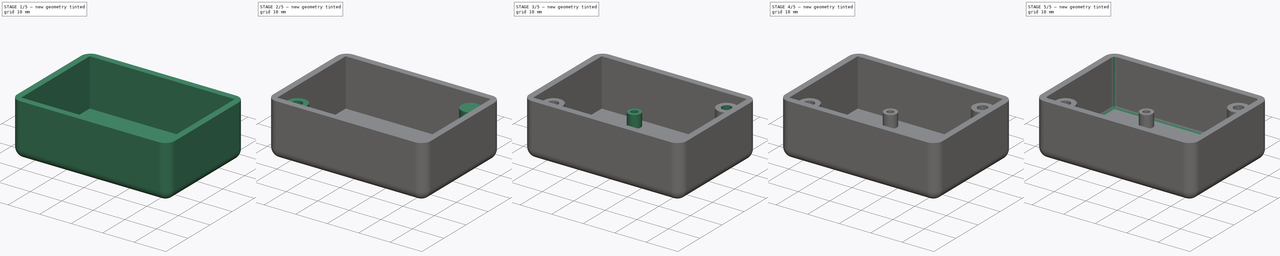
[diagram: build sequence overview — one tinted view per stage of 5, left to right]
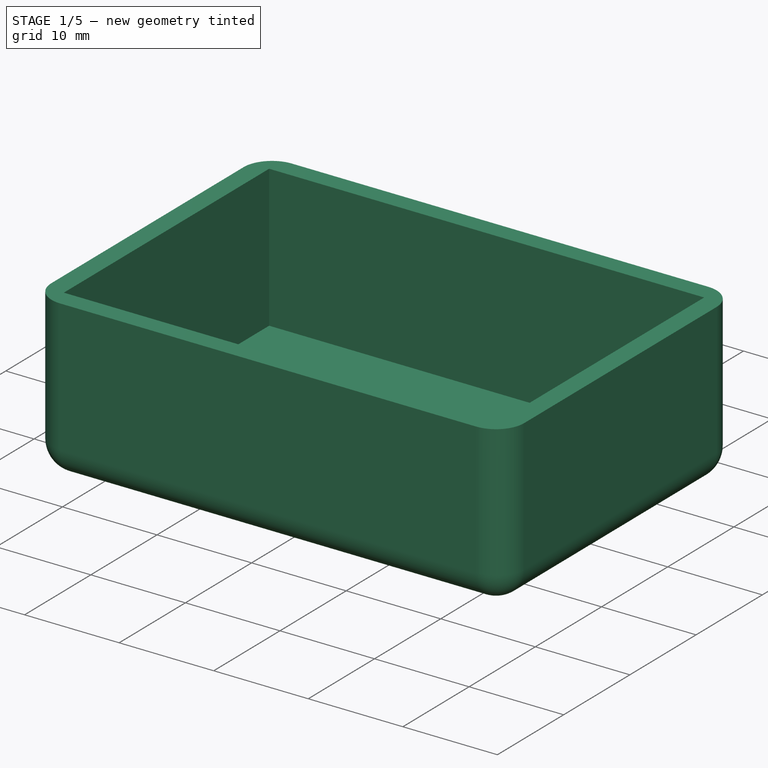
[diagram: stage 1 of 5 — iso view after this stage's code; geometry added in this stage tinted green]
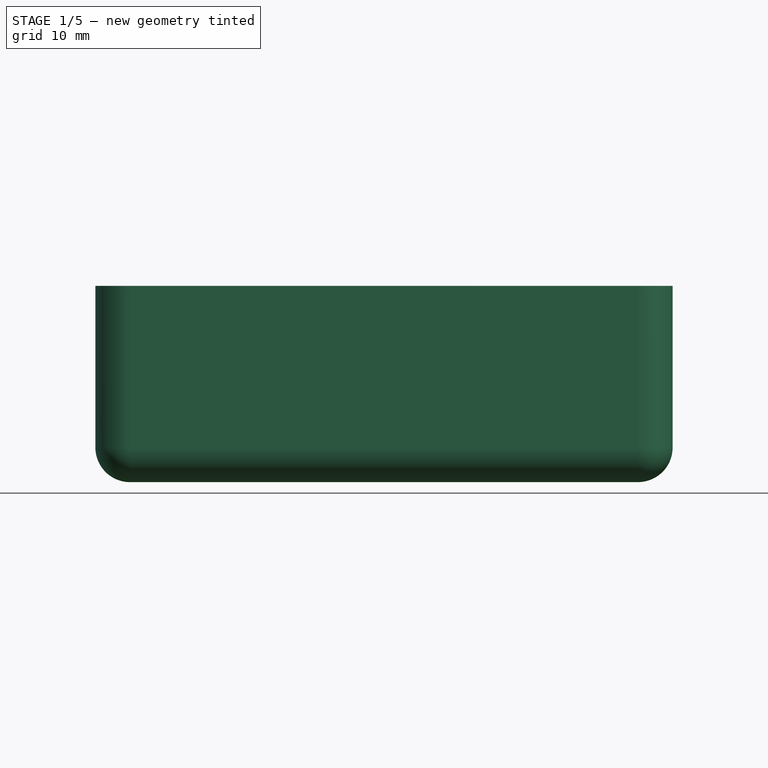
[diagram: stage 1 of 5 — front view after this stage's code; geometry added in this stage tinted green]
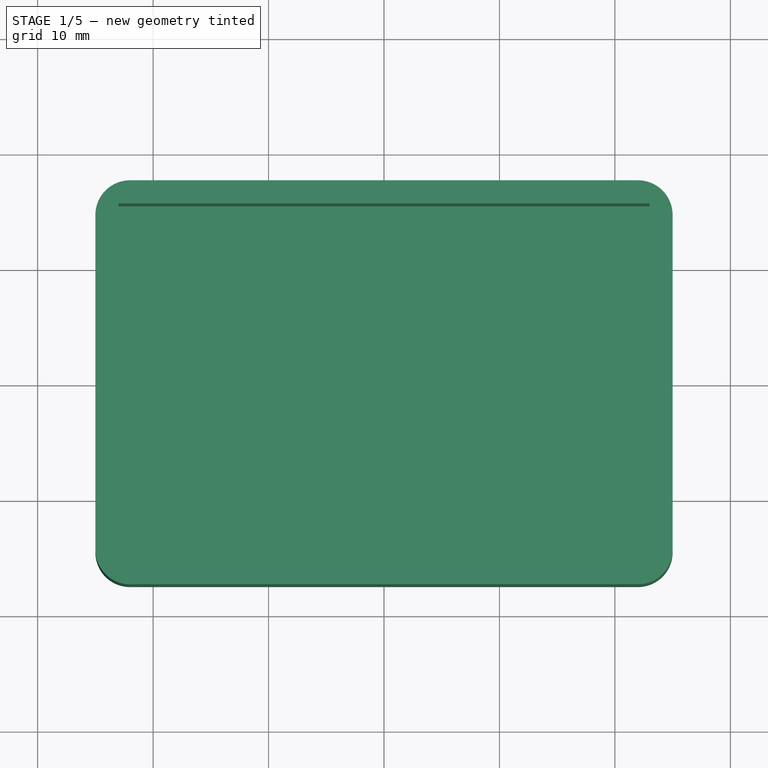
[diagram: stage 1 of 5 — top view after this stage's code; geometry added in this stage tinted green]
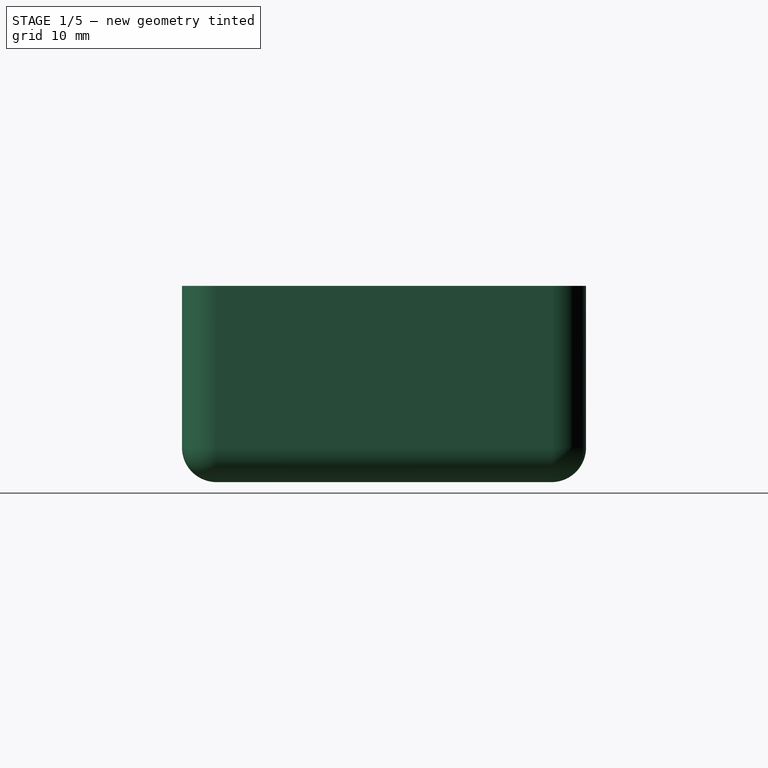
[diagram: stage 1 of 5 — right view after this stage's code; geometry added in this stage tinted green]
FCSTD DOCUMENT  (FreeCAD 0.18R16146 (Git))
Label: hammond_1551G_box
License: All rights reserved
LicenseURL: http://en.wikipedia.org/wiki/All_rights_reserved
objects: Sketcher::SketchObject×14, PartDesign::Pad×9, PartDesign::Pocket×5, PartDesign::Fillet×2, PartDesign::Body×1
note: 45 computed .brp shape members not serialized (recipe doc carries the construction recipe); baked Part::Feature solids carry a one-line shape summary decoded from their .brp

FEATURE [Sketcher::SketchObject] Sketch  label="box body base"
  MapMode = 5
  Support = -> [XY_Plane]
  sketch-geometry (4):
    g0: LineSegment StartX=-25 StartY=-17.5 StartZ=0 EndX=25 EndY=-17.5 EndZ=0
    g1: LineSegment StartX=25 StartY=-17.5 StartZ=0 EndX=25 EndY=17.5 EndZ=0
    g2: LineSegment StartX=25 StartY=17.5 StartZ=0 EndX=-25 EndY=17.5 EndZ=0
    g3: LineSegment StartX=-25 StartY=17.5 StartZ=0 EndX=-25 EndY=-17.5 EndZ=0
  constraints (8):
    c: Coincident(g0,g1)
    c: Coincident(g1,g2)
    c: Coincident(g2,g3)
    c: Coincident(g3,g0)
    c: Horizontal(g0)
    c: Horizontal(g2)
    c: Vertical(g1)
    c: Vertical(g3)
FEATURE [PartDesign::Pad] Pad  label="Box Body"
  Length = 17
  Length2 = 100
  Profile = -> Sketch
  Reversed = true
  Type = 0
FEATURE [Sketcher::SketchObject] Sketch002  label="box contents base"
  MapMode = 5
  Support = -> [XY_Plane]
  sketch-geometry (4):
    g0: LineSegment StartX=-23 StartY=-15.5 StartZ=0 EndX=23 EndY=-15.5 EndZ=0
    g1: LineSegment StartX=23 StartY=-15.5 StartZ=0 EndX=23 EndY=15.5 EndZ=0
    g2: LineSegment StartX=23 StartY=15.5 StartZ=0 EndX=-23 EndY=15.5 EndZ=0
    g3: LineSegment StartX=-23 StartY=15.5 StartZ=0 EndX=-23 EndY=-15.5 EndZ=0
  constraints (8):
    c: Coincident(g0,g1)
    c: Coincident(g1,g2)
    c: Coincident(g2,g3)
    c: Coincident(g3,g0)
    c: Horizontal(g0)
    c: Horizontal(g2)
    c: Vertical(g1)
    c: Vertical(g3)
FEATURE [PartDesign::Pocket] Pocket  label="Box contents"
  BaseFeature = -> Pad
  Length = 15
  Length2 = 100
  Profile = -> Sketch002
  Type = 0
FEATURE [PartDesign::Fillet] Fillet  label="outer fillet"
  Base = -> Pocket [Edge4,Edge2,Edge1,Edge7,Edge5,Edge16,Edge8,Edge10]
  BaseFeature = -> Pocket
  Radius = 3
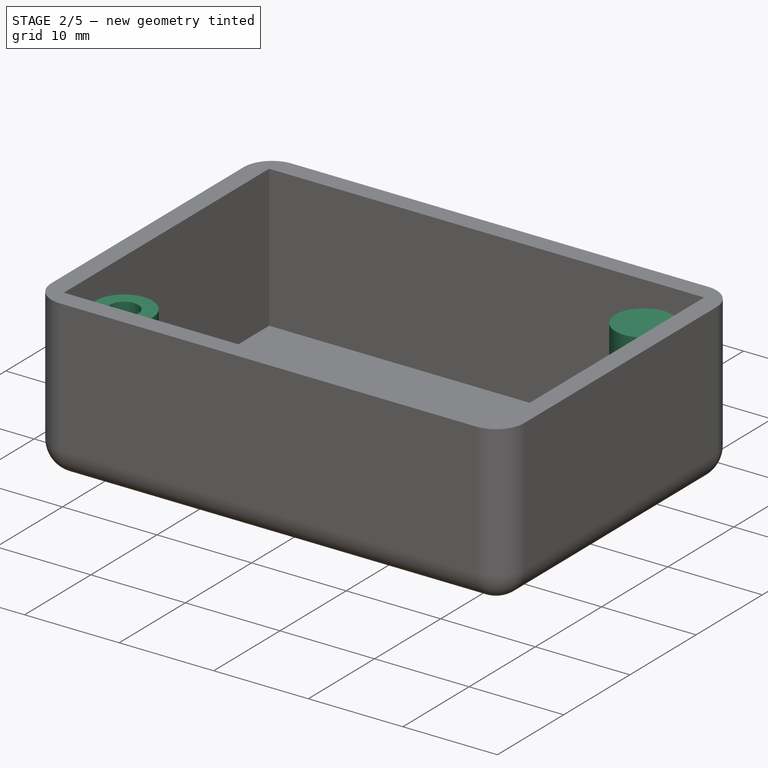
[diagram: stage 2 of 5 — iso view after this stage's code; geometry added in this stage tinted green]
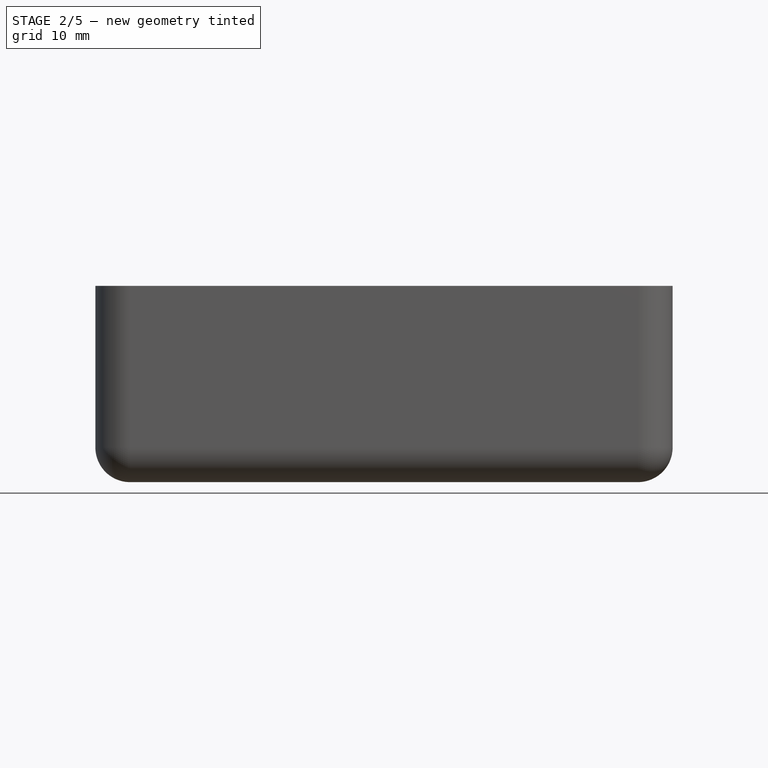
[diagram: stage 2 of 5 — front view after this stage's code; geometry added in this stage tinted green]
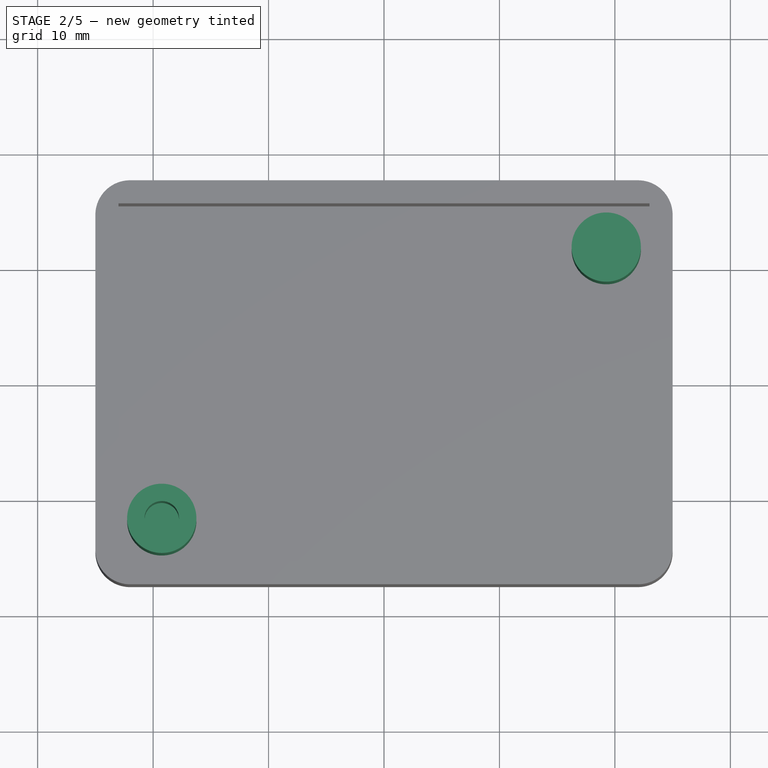
[diagram: stage 2 of 5 — top view after this stage's code; geometry added in this stage tinted green]
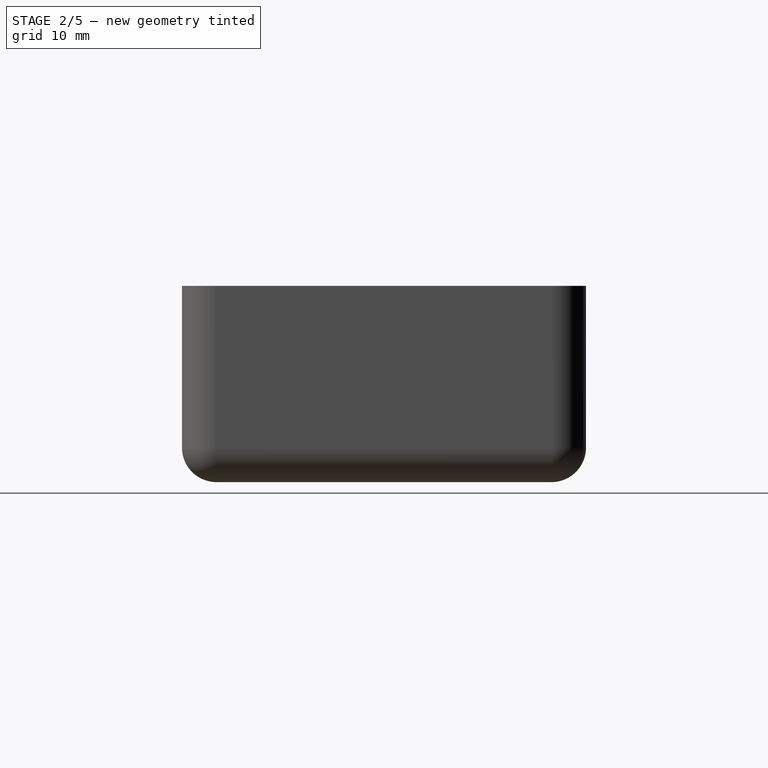
[diagram: stage 2 of 5 — right view after this stage's code; geometry added in this stage tinted green]
FEATURE [Sketcher::SketchObject] Sketch003  label="Left bottom post base"
  MapMode = 5
  Placement = pos=(0,0,-15) rot=(0,0,1;0rad)
  Support = -> [Fillet]
  sketch-geometry (1):
    g0: Circle CenterX=-19.25 CenterY=-11.75 CenterZ=0 NormalX=0 NormalY=0 NormalZ=1 AngleXU=0 Radius=3
FEATURE [PartDesign::Pad] Pad001  label="Left Bottom post"
  BaseFeature = -> Fillet
  Length = 13
  Length2 = 100
  Profile = -> Sketch003
  Type = 0
FEATURE [Sketcher::SketchObject] Sketch005  label="left bottom hole base"
  MapMode = 5
  Placement = pos=(0,0,-2) rot=(0,0,1;0rad)
  Support = -> [Pad001]
  sketch-geometry (1):
    g0: Circle CenterX=-19.25 CenterY=-11.75 CenterZ=0 NormalX=0 NormalY=0 NormalZ=1 AngleXU=0 Radius=1.5
FEATURE [PartDesign::Pocket] Pocket001  label="Left Bottom hole"
  BaseFeature = -> Pad001
  Length = 10
  Length2 = 100
  Profile = -> Sketch005
  Type = 0
FEATURE [Sketcher::SketchObject] Sketch006  label="right top post base"
  MapMode = 5
  Placement = pos=(0,0,-15) rot=(0,0,1;0rad)
  Support = -> [Pocket001]
  sketch-geometry (1):
    g0: Circle CenterX=19.25 CenterY=11.75 CenterZ=0 NormalX=0 NormalY=0 NormalZ=1 AngleXU=0 Radius=3
FEATURE [PartDesign::Pad] Pad002  label="right top post"
  BaseFeature = -> Pocket001
  Length = 13
  Length2 = 100
  Profile = -> Sketch006
  Type = 0
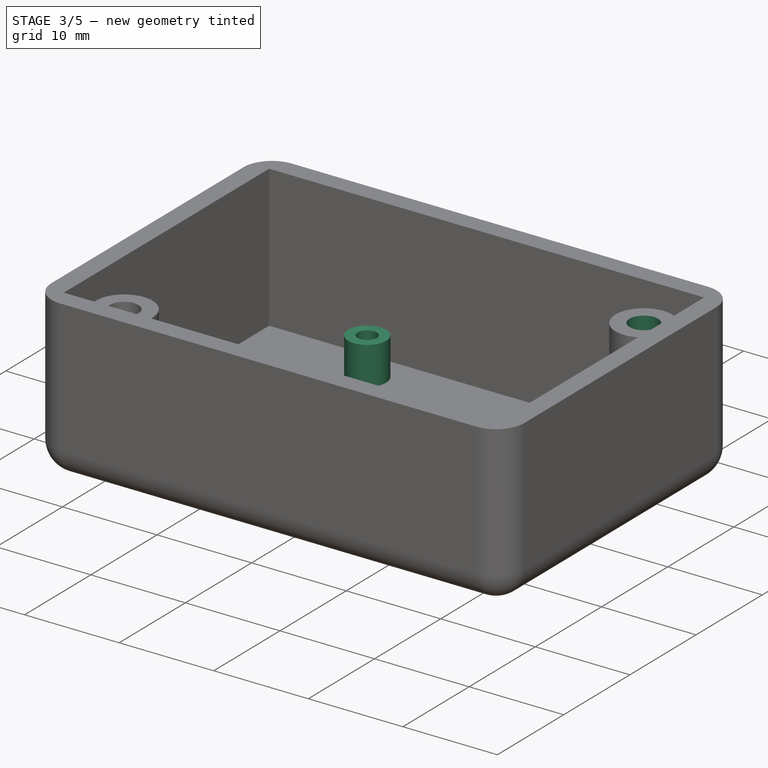
[diagram: stage 3 of 5 — iso view after this stage's code; geometry added in this stage tinted green]
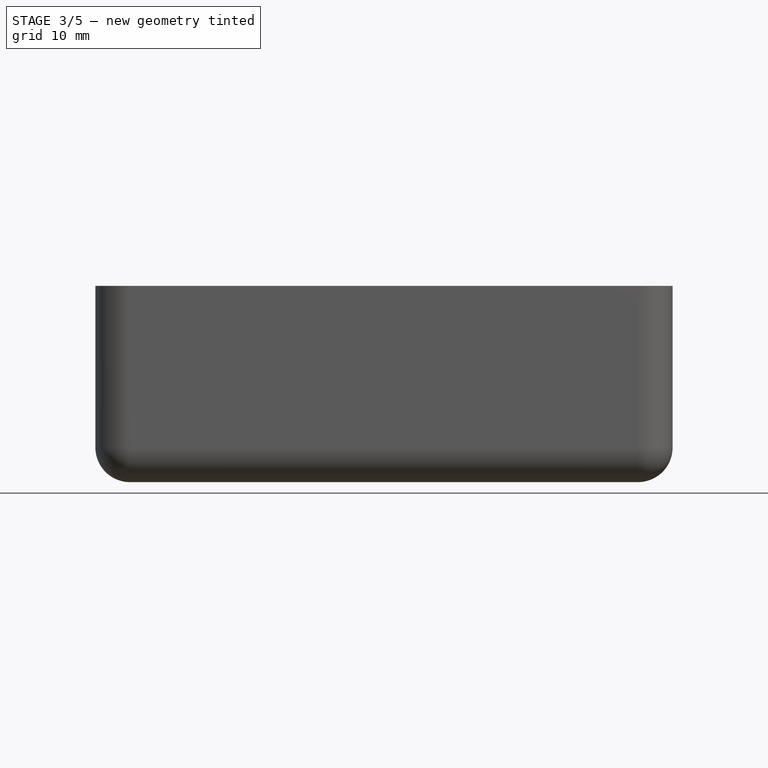
[diagram: stage 3 of 5 — front view after this stage's code; geometry added in this stage tinted green]
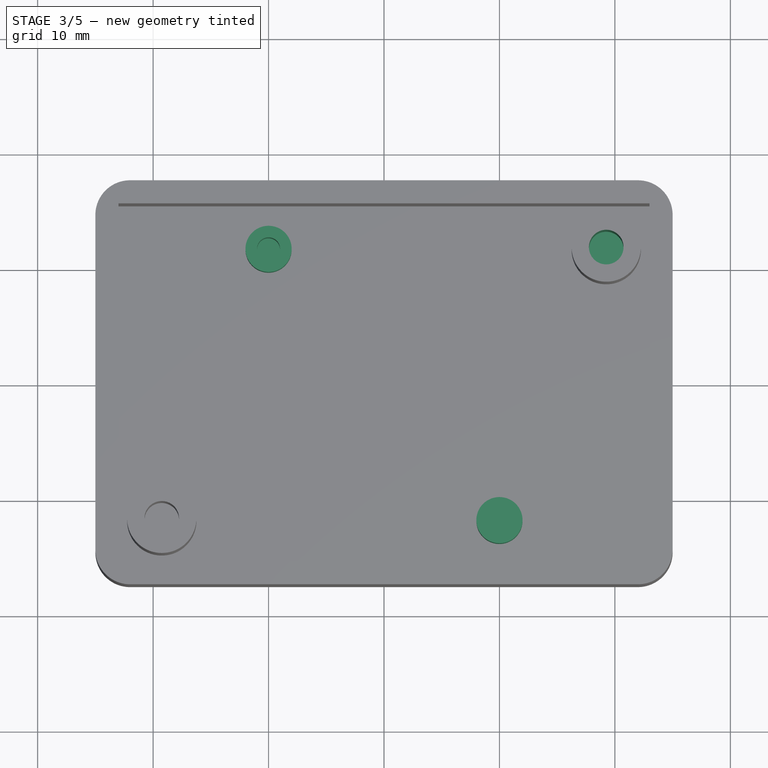
[diagram: stage 3 of 5 — top view after this stage's code; geometry added in this stage tinted green]
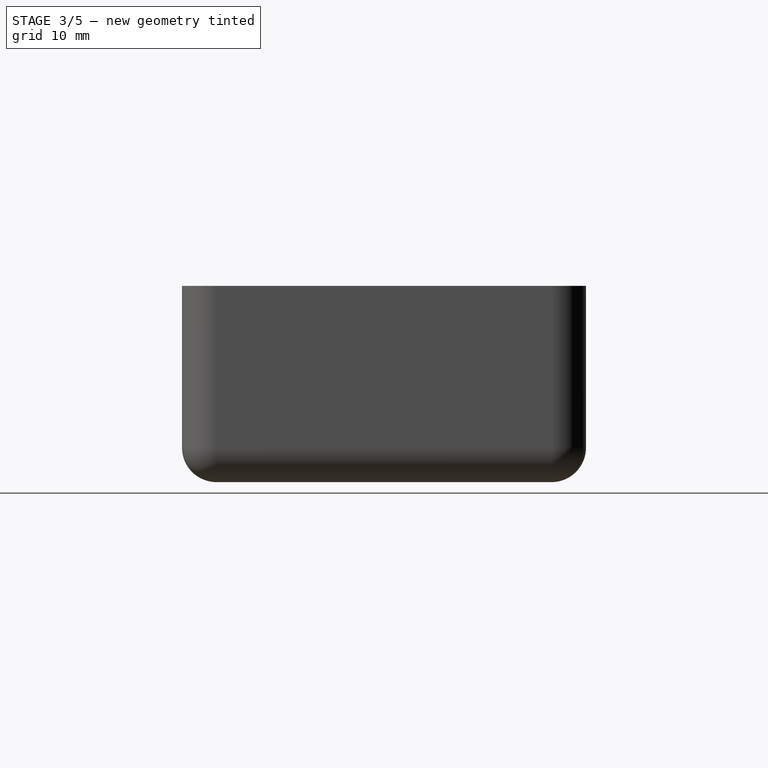
[diagram: stage 3 of 5 — right view after this stage's code; geometry added in this stage tinted green]
FEATURE [Sketcher::SketchObject] Sketch007  label="right top hole base"
  MapMode = 5
  Placement = pos=(0,0,-2) rot=(0,0,1;0rad)
  Support = -> [Pad002]
  sketch-geometry (1):
    g0: Circle CenterX=19.25 CenterY=11.75 CenterZ=0 NormalX=0 NormalY=0 NormalZ=1 AngleXU=0 Radius=1.5
FEATURE [PartDesign::Pocket] Pocket002  label="right top hole"
  BaseFeature = -> Pad002
  Length = 10
  Length2 = 100
  Profile = -> Sketch007
  Type = 0
FEATURE [Sketcher::SketchObject] Sketch008  label="left top post base"
  MapMode = 5
  Placement = pos=(0,0,-15) rot=(0,0,1;0rad)
  Support = -> [Pocket002]
  sketch-geometry (1):
    g0: Circle CenterX=-10 CenterY=11.75 CenterZ=0 NormalX=0 NormalY=0 NormalZ=1 AngleXU=0 Radius=2
FEATURE [PartDesign::Pad] Pad003  label="left top post"
  BaseFeature = -> Pocket002
  Length = 4
  Length2 = 100
  Profile = -> Sketch008
  Type = 0
FEATURE [Sketcher::SketchObject] Sketch009  label="right bottom base"
  MapMode = 5
  Placement = pos=(0,0,-15) rot=(0,0,1;0rad)
  Support = -> [Pad003]
  sketch-geometry (1):
    g0: Circle CenterX=10 CenterY=-11.75 CenterZ=0 NormalX=0 NormalY=0 NormalZ=1 AngleXU=0 Radius=2
FEATURE [PartDesign::Pad] Pad004  label="right bottom post"
  BaseFeature = -> Pad003
  Length = 4
  Length2 = 100
  Profile = -> Sketch009
  Type = 0
FEATURE [Sketcher::SketchObject] Sketch010  label="left top hole base"
  MapMode = 5
  Placement = pos=(0,0,-11) rot=(0,0,1;0rad)
  Support = -> [Pad004]
  sketch-geometry (1):
    g0: Circle CenterX=-10 CenterY=11.75 CenterZ=0 NormalX=0 NormalY=0 NormalZ=1 AngleXU=0 Radius=1
FEATURE [PartDesign::Pocket] Pocket003  label="left top hole"
  BaseFeature = -> Pad004
  Length = 5
  Length2 = 100
  Profile = -> Sketch010
  Type = 0
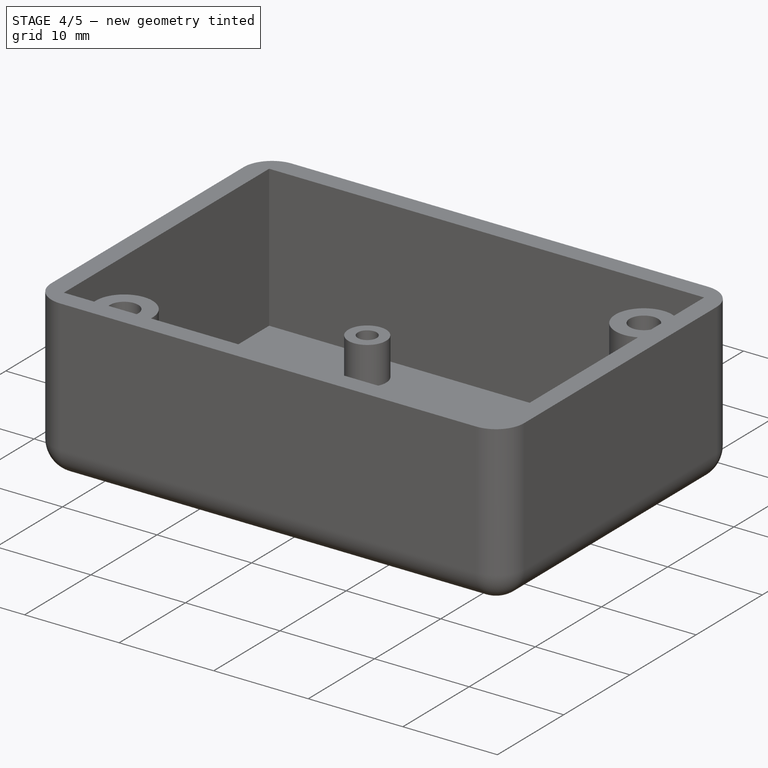
[diagram: stage 4 of 5 — iso view after this stage's code; geometry added in this stage tinted green]
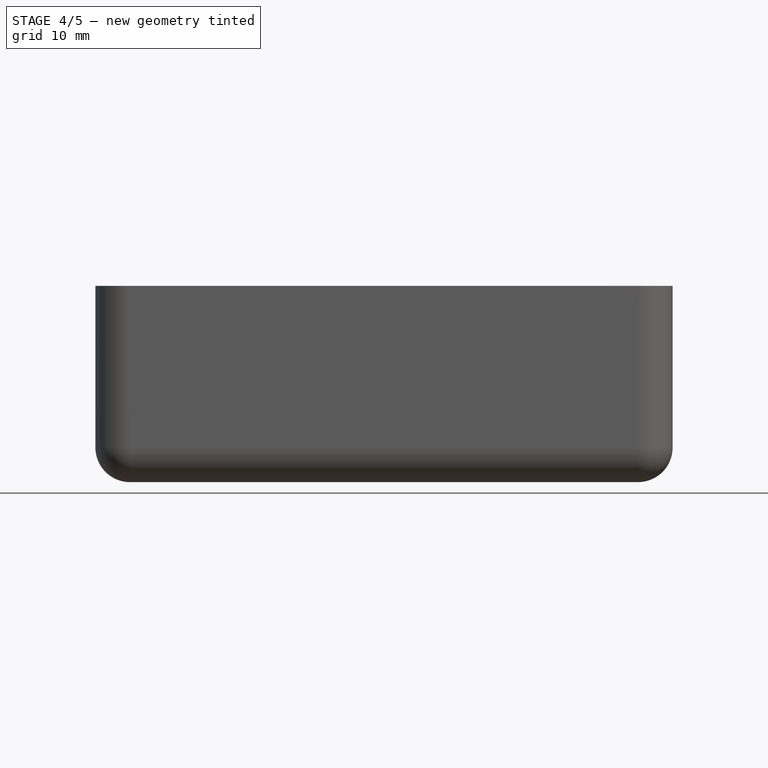
[diagram: stage 4 of 5 — front view after this stage's code; geometry added in this stage tinted green]
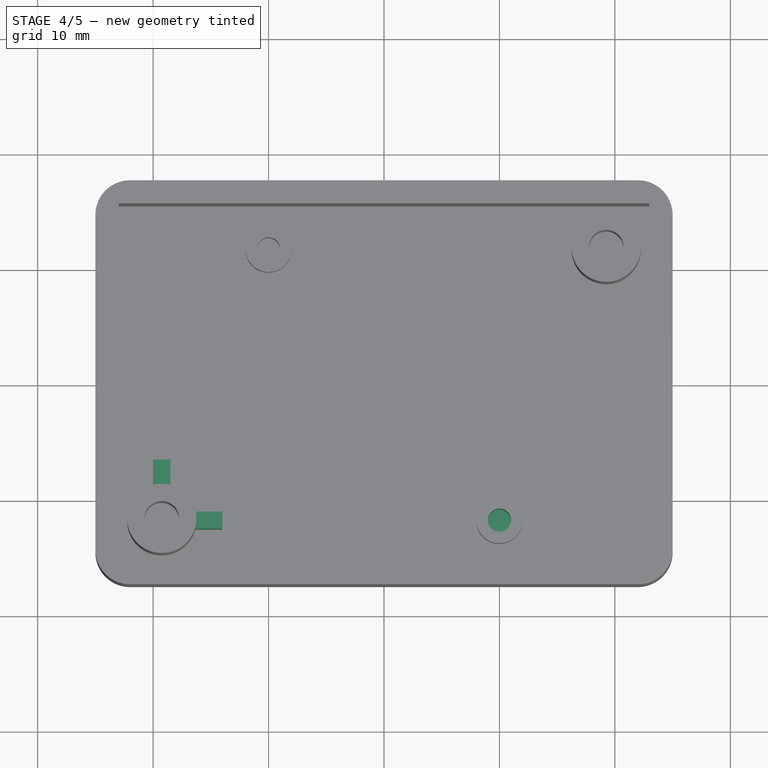
[diagram: stage 4 of 5 — top view after this stage's code; geometry added in this stage tinted green]
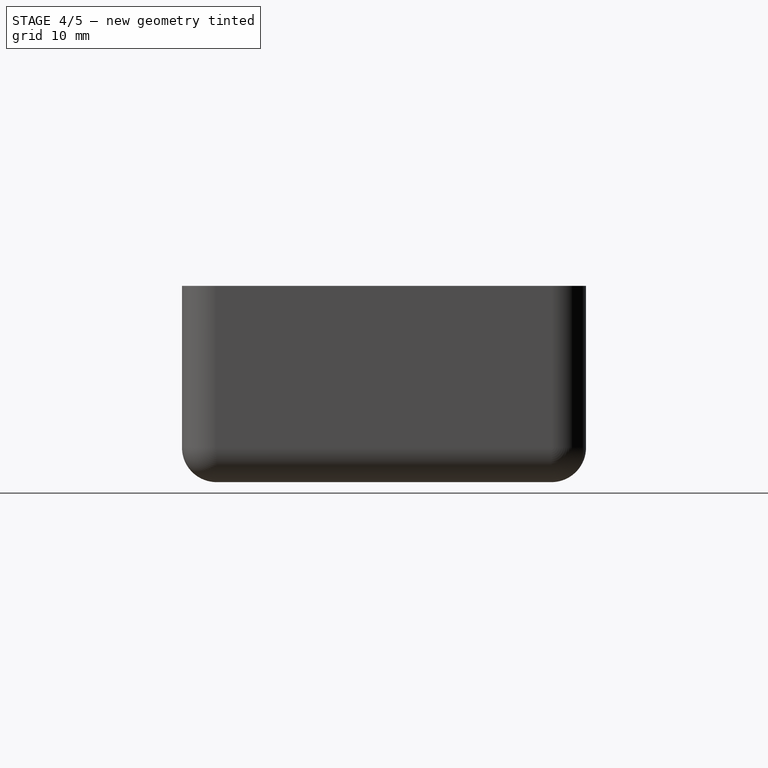
[diagram: stage 4 of 5 — right view after this stage's code; geometry added in this stage tinted green]
FEATURE [Sketcher::SketchObject] Sketch011  label="right bottom hole base"
  MapMode = 5
  Placement = pos=(0,0,-11) rot=(0,0,1;0rad)
  Support = -> [Pocket003]
  sketch-geometry (1):
    g0: Circle CenterX=10 CenterY=-11.75 CenterZ=0 NormalX=0 NormalY=0 NormalZ=1 AngleXU=0 Radius=1
FEATURE [PartDesign::Pocket] Pocket004  label="right bottom hole"
  BaseFeature = -> Pocket003
  Length = 5
  Length2 = 100
  Profile = -> Sketch011
  Type = 0
FEATURE [Sketcher::SketchObject] Sketch012  label="left bot top post base"
  MapMode = 5
  Placement = pos=(0,0,-15) rot=(0,0,1;0rad)
  Support = -> [Pocket004]
  sketch-geometry (4):
    g0: LineSegment StartX=-20 StartY=-9.5 StartZ=0 EndX=-18.5 EndY=-9.5 EndZ=0
    g1: LineSegment StartX=-18.5 StartY=-9.5 StartZ=0 EndX=-18.5 EndY=-6.5 EndZ=0
    g2: LineSegment StartX=-18.5 StartY=-6.5 StartZ=0 EndX=-20 EndY=-6.5 EndZ=0
    g3: LineSegment StartX=-20 StartY=-6.5 StartZ=0 EndX=-20 EndY=-9.5 EndZ=0
  constraints (8):
    c: Coincident(g0,g1)
    c: Coincident(g1,g2)
    c: Coincident(g2,g3)
    c: Coincident(g3,g0)
    c: Horizontal(g0)
    c: Horizontal(g2)
    c: Vertical(g1)
    c: Vertical(g3)
FEATURE [PartDesign::Pad] Pad005  label="left bot top post"
  BaseFeature = -> Pocket004
  Length = 4
  Length2 = 100
  Profile = -> Sketch012
  Type = 0
FEATURE [Sketcher::SketchObject] Sketch013  label="left bot right post base"
  MapMode = 5
  Placement = pos=(0,0,-15) rot=(0,0,1;0rad)
  Support = -> [Pad005]
  sketch-geometry (4):
    g0: LineSegment StartX=-17 StartY=-11 StartZ=0 EndX=-14 EndY=-11 EndZ=0
    g1: LineSegment StartX=-14 StartY=-11 StartZ=0 EndX=-14 EndY=-12.5 EndZ=0
    g2: LineSegment StartX=-14 StartY=-12.5 StartZ=0 EndX=-17 EndY=-12.5 EndZ=0
    g3: LineSegment StartX=-17 StartY=-12.5 StartZ=0 EndX=-17 EndY=-11 EndZ=0
  constraints (8):
    c: Coincident(g0,g1)
    c: Coincident(g1,g2)
    c: Coincident(g2,g3)
    c: Coincident(g3,g0)
    c: Horizontal(g0)
    c: Horizontal(g2)
    c: Vertical(g1)
    c: Vertical(g3)
FEATURE [PartDesign::Pad] Pad006  label="left bot right post"
  BaseFeature = -> Pad005
  Length = 4
  Length2 = 100
  Profile = -> Sketch013
  Type = 0
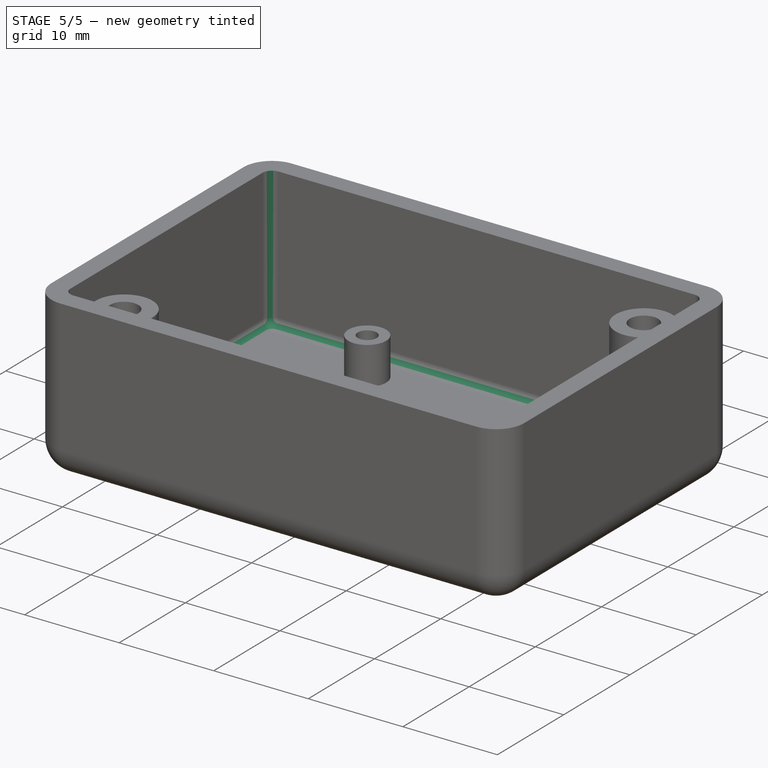
[diagram: stage 5 of 5 — iso view after this stage's code; geometry added in this stage tinted green]
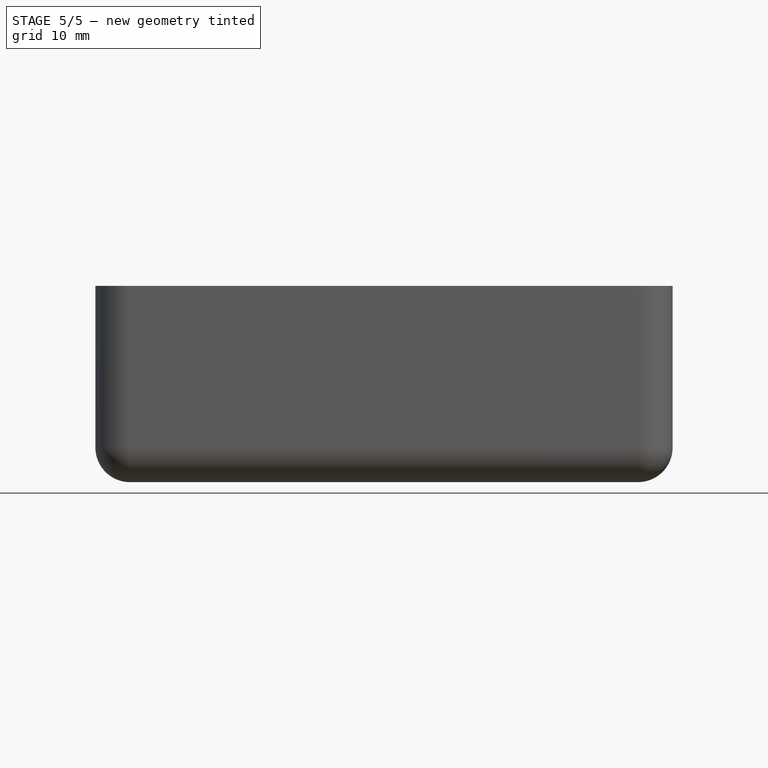
[diagram: stage 5 of 5 — front view after this stage's code; geometry added in this stage tinted green]
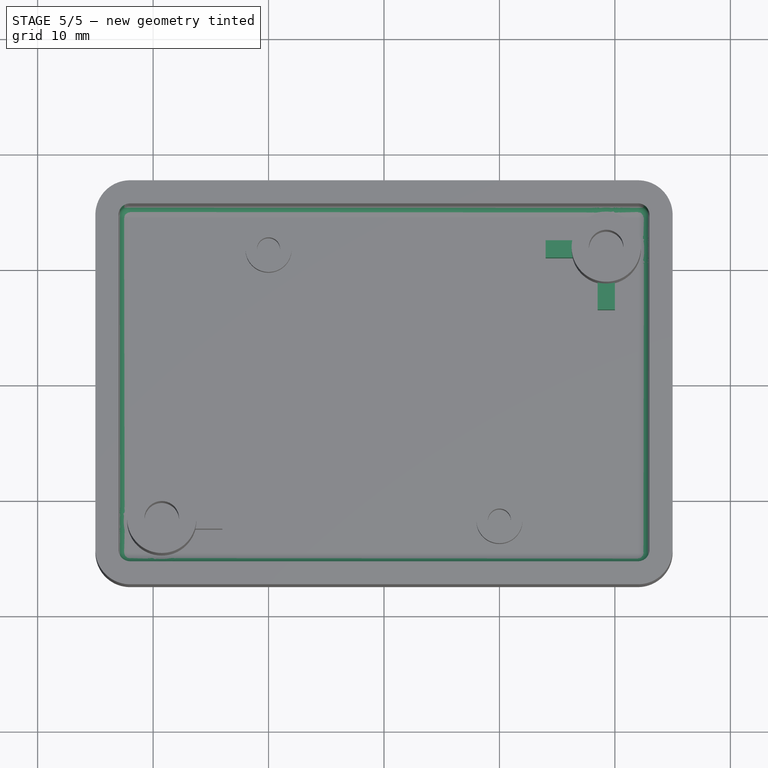
[diagram: stage 5 of 5 — top view after this stage's code; geometry added in this stage tinted green]
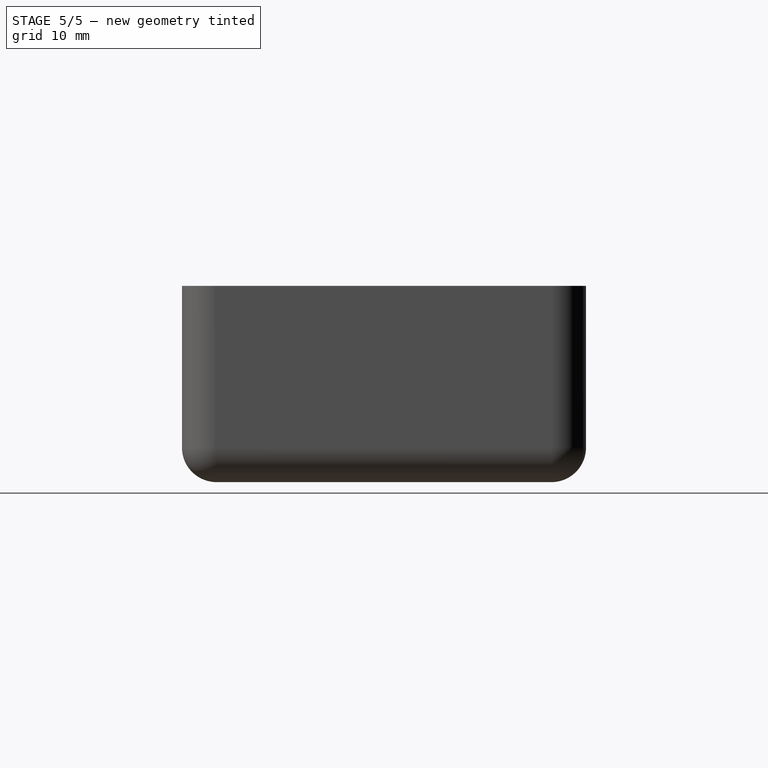
[diagram: stage 5 of 5 — right view after this stage's code; geometry added in this stage tinted green]
FEATURE [Sketcher::SketchObject] Sketch014  label="right top left post base"
  MapMode = 5
  Placement = pos=(0,0,-15) rot=(0,0,1;0rad)
  Support = -> [Pad006]
  sketch-geometry (4):
    g0: LineSegment StartX=17 StartY=12.5 StartZ=0 EndX=14 EndY=12.5 EndZ=0
    g1: LineSegment StartX=14 StartY=12.5 StartZ=0 EndX=14 EndY=11 EndZ=0
    g2: LineSegment StartX=14 StartY=11 StartZ=0 EndX=17 EndY=11 EndZ=0
    g3: LineSegment StartX=17 StartY=11 StartZ=0 EndX=17 EndY=12.5 EndZ=0
  constraints (8):
    c: Coincident(g0,g1)
    c: Coincident(g1,g2)
    c: Coincident(g2,g3)
    c: Coincident(g3,g0)
    c: Horizontal(g0)
    c: Horizontal(g2)
    c: Vertical(g1)
    c: Vertical(g3)
FEATURE [PartDesign::Pad] Pad007  label="right top left post"
  BaseFeature = -> Pad006
  Length = 4
  Length2 = 100
  Profile = -> Sketch014
  Type = 0
FEATURE [Sketcher::SketchObject] Sketch015  label="right top bot post base"
  MapMode = 5
  Placement = pos=(0,0,-15) rot=(0,0,1;0rad)
  Support = -> [Pad007]
  sketch-geometry (4):
    g0: LineSegment StartX=18.5 StartY=9.5 StartZ=0 EndX=20 EndY=9.5 EndZ=0
    g1: LineSegment StartX=20 StartY=9.5 StartZ=0 EndX=20 EndY=6.5 EndZ=0
    g2: LineSegment StartX=20 StartY=6.5 StartZ=0 EndX=18.5 EndY=6.5 EndZ=0
    g3: LineSegment StartX=18.5 StartY=6.5 StartZ=0 EndX=18.5 EndY=9.5 EndZ=0
  constraints (8):
    c: Coincident(g0,g1)
    c: Coincident(g1,g2)
    c: Coincident(g2,g3)
    c: Coincident(g3,g0)
    c: Horizontal(g0)
    c: Horizontal(g2)
    c: Vertical(g1)
    c: Vertical(g3)
FEATURE [PartDesign::Pad] Pad008  label="right top bot post"
  BaseFeature = -> Pad007
  Length = 4
  Length2 = 100
  Profile = -> Sketch015
  Type = 0
FEATURE [PartDesign::Fillet] Fillet001  label="inner fillet"
  Base = -> Pad007 [Edge37,Edge38,Edge39,Edge32,Edge34,Edge36,Edge33,Edge35]
  BaseFeature = -> Pad007
  Radius = 1
FEATURE [PartDesign::Body] Body
  Group = -> [Sketch,Pad,Sketch002,Pocket,Fillet,Sketch003,Pad001,Sketch005,Pocket001,Sketch006,Pad002,Sketch007,Pocket002,Sketch008,Pad003,Sketch009,Pad004,Sketch010,Pocket003,Sketch011,Pocket004,Sketch012,Pad005,Sketch013,Pad006,Sketch014,Pad007,Sketch015,Pad008,Fillet001]
  Origin = -> Origin
  Tip = -> Fillet001
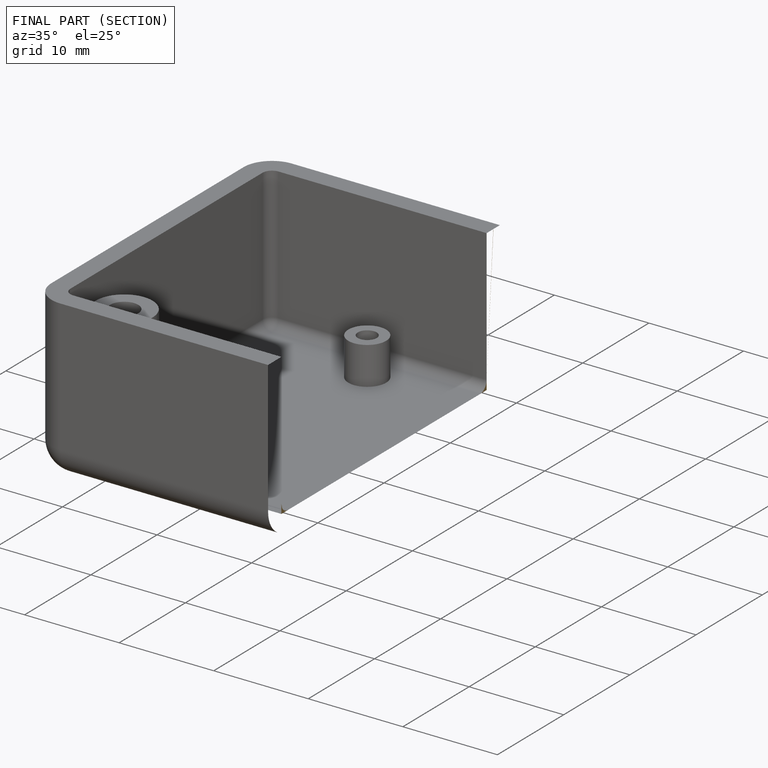
[diagram: finished part — half-section view (interior)]
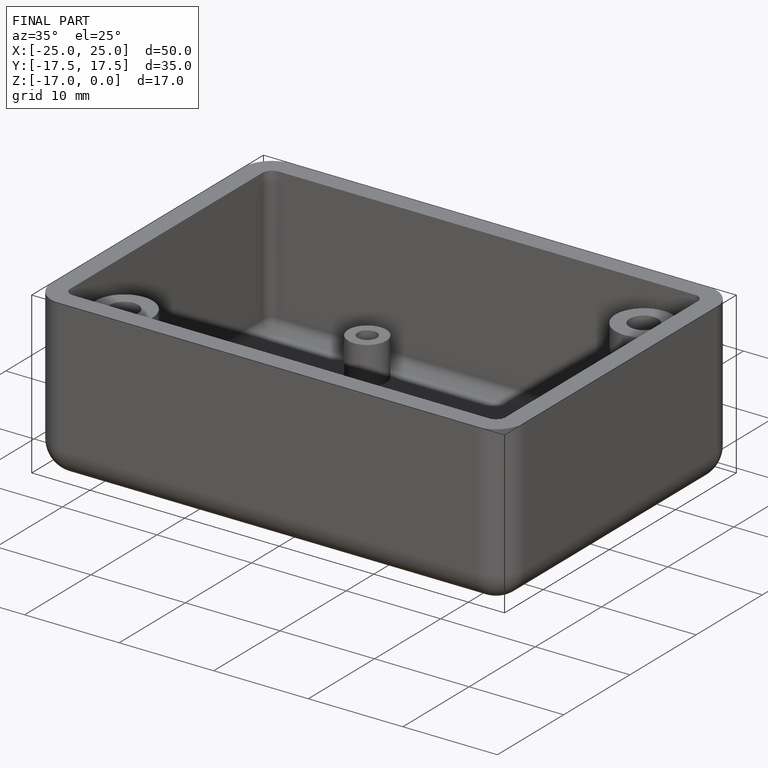
[diagram: finished part — iso view with bounding-box wireframe]
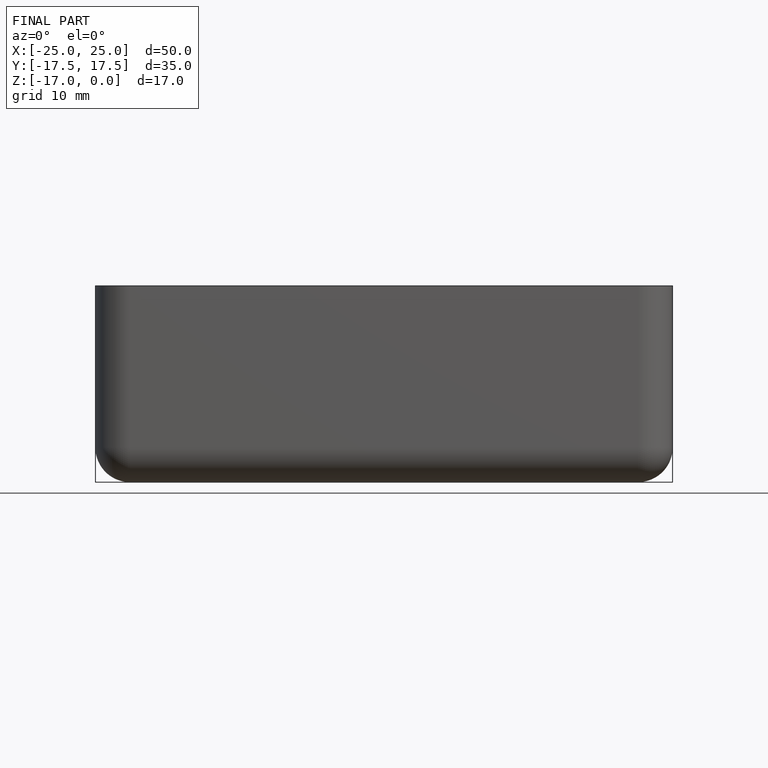
[diagram: finished part — front view with bounding-box wireframe]
